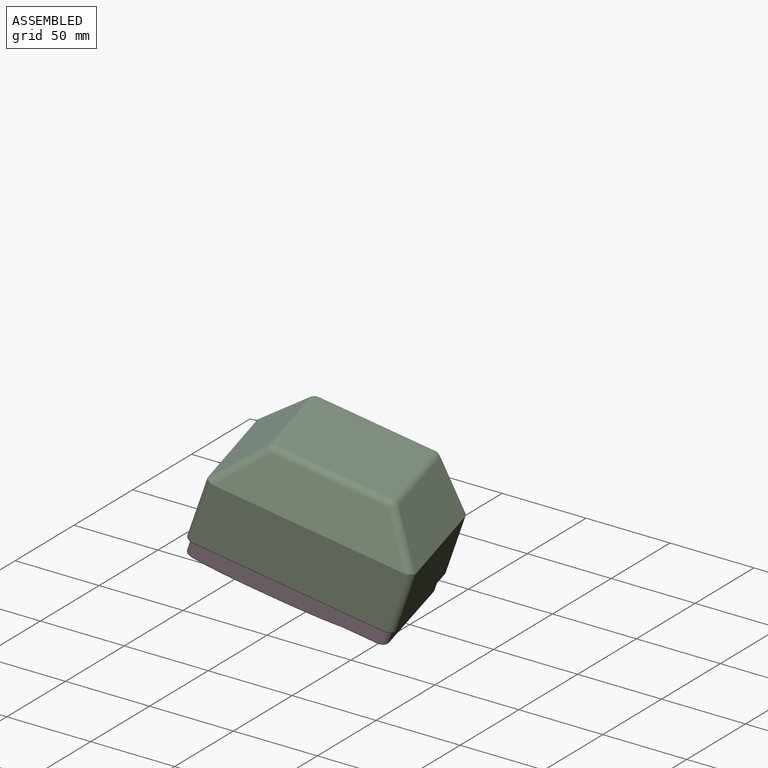
[diagram: assembled view]
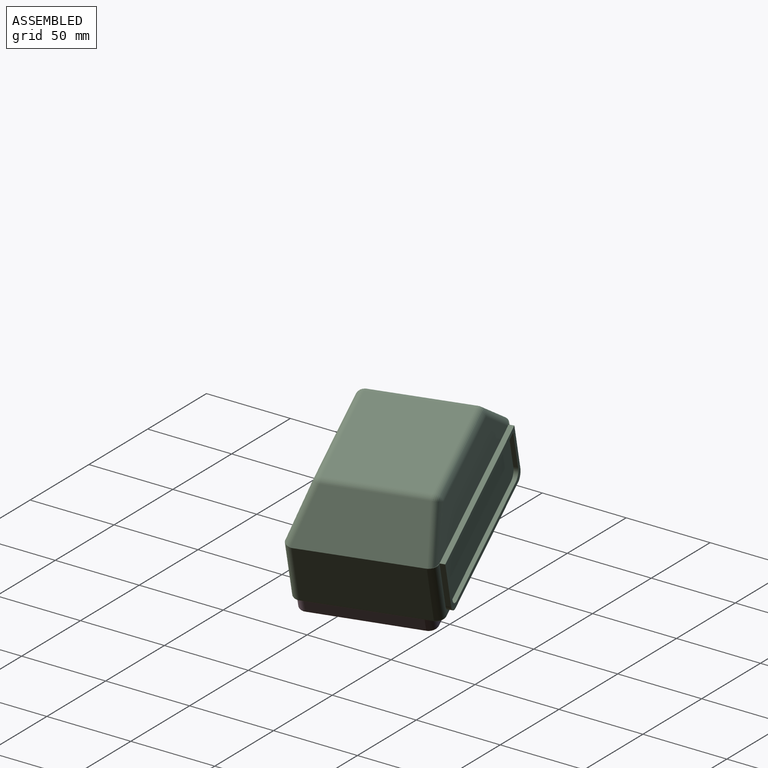
[diagram: assembled view, second angle]
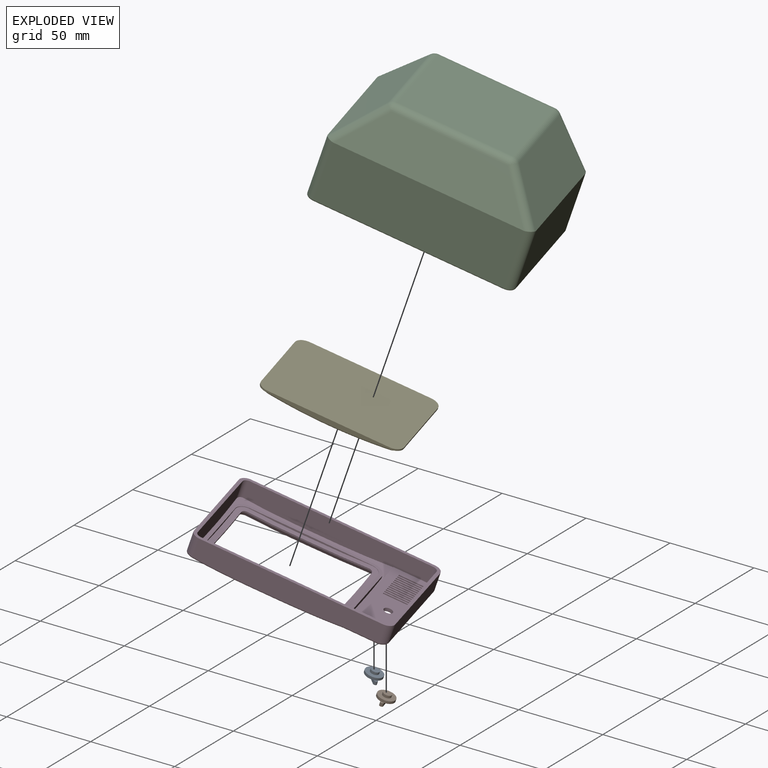
[diagram: exploded view]
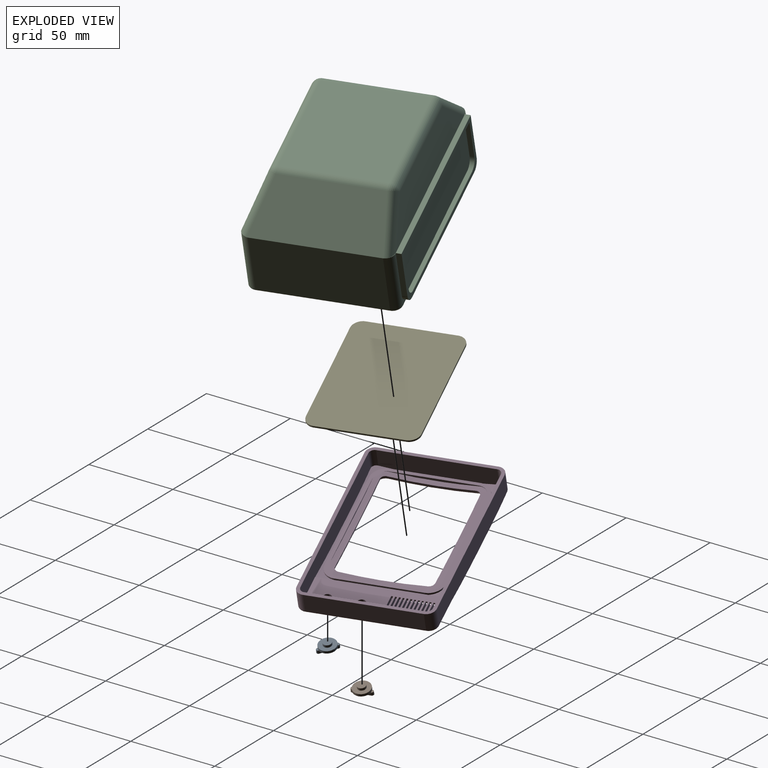
[diagram: exploded view, second angle]
ASSEMBLY  parts=5 mates=5
PART A: 13 faces, bbox 10x5x12.1 mm
  f0: plane 9.78x3.95mm, normal (0,-1,0), area 28.8mm2, adj f3,f9
  f1: cylinder r=2.4mm len=4.8mm, axis (0,-1,0), area 22.6mm2, adj f2,f4
  f2: plane 4.8x4.8mm, normal (0,1,0), area 18.1mm2, adj f1
  f3: cylinder r=5mm len=10mm, axis (0,-1,0), area 47.1mm2, adj f0,f4,f5,f6,f7
  f4: plane 10x10mm, normal (0,1,0), area 60.4mm2, adj f1,f3
  f5: plane 9.78x3.95mm, normal (0,-1,0), area 28.8mm2, adj f3,f11
  f6: plane 2.11x1.17mm, normal (0,1,0), area 1.8mm2, adj f3,f9,f10,f11
  f7: plane 2.11x1.17mm, normal (0,1,0), area 1.8mm2, adj f3,f8,f11
  f8: cylinder r=1.06mm len=2.11mm, axis (0,1,0), area 6.7mm2, adj f7,f9,f11,f12
  f9: plane 9.89x2mm, normal (1,0,0), area 19.8mm2, adj f0,f6,f8,f10,f12
  f10: cylinder r=1.05mm len=2.11mm, axis (0,1,0), area 6.6mm2, adj f6,f9,f11,f12
  f11: plane 10.11x2mm, normal (-1,0,0), area 20.2mm2, adj f5,f6,f7,f8,f10,f12
  f12: plane 12.11x2.11mm, normal (0,-1,0), area 24.6mm2, adj f8,f9,f10,f11
PART B: same geometry as A
PART C: 69 faces, bbox 114.4x62x83.5 mm
  f0: plane 103.5x33mm, normal (0,0,-1), area 657.5mm2, adj f2,f15,f16,f18,f32,f33,f34,f35
  f1: plane 111.5x78mm, normal (0,-1,0), area 587.5mm2, adj f40,f41,f42,f43,f44,f45,f46,f47
  f2: plane 28x3mm, normal (1,0,0), area 84mm2, adj f0,f12,f15,f38
  f3: plane 103.7x23.95mm, normal (0,0.39,0.92), area 2171.9mm2, adj f9,f13,f14,f24,f28,f30
  f4: plane 71.24x25.27mm, normal (-0.76,0.64,0), area 2131.3mm2, adj f10,f11,f14,f21,f27,f30
  f5: plane 101.27x22.5mm, normal (0,0.1,-1), area 1861.3mm2, adj f15,f19,f21,f22
  f6: plane 71.24x25.27mm, normal (0.76,0.64,0), area 2131.3mm2, adj f8,f12,f13,f19,f23,f24
  f7: plane 63.36x58.04mm, normal (0,1,0), area 3677.5mm2, adj f22,f23,f27,f28
  f8: plane 70x34mm, normal (1,0,0), area 2380mm2, adj f6,f12,f13,f45
  f9: plane 103.5x34mm, normal (0,0,1), area 3519mm2, adj f3,f13,f14,f46
  f10: plane 70x34mm, normal (-1,0,0), area 2380mm2, adj f4,f11,f14,f42
  f11: cylinder r=5mm len=34.04mm, axis (0,-1,0), area 267.1mm2, adj f4,f10,f15,f16,f17,f21,f40
  f12: cylinder r=5mm len=34.04mm, axis (0,-1,0), area 267.1mm2, adj f2,f6,f8,f15,f17,f19,f43
  f13: cylinder r=5mm len=34.36mm, axis (0,-1,0), area 268.7mm2, adj f3,f6,f8,f9,f24,f47
  f14: cylinder r=5mm len=34.36mm, axis (0,-1,0), area 268.7mm2, adj f3,f4,f9,f10,f30,f44
  f15: plane 112.36x5.69mm, normal (0,1,0), area 312mm2, adj f0,f2,f5,f11,f12,f16,f19,f21
  f16: plane 28x3mm, normal (-1,0,0), area 84mm2, adj f0,f11,f15,f39
  f17: plane 103.5x6mm, normal (0,0,-1), area 114.2mm2, adj f11,f12,f18,f38,f39,f41
  f18: plane 93.5x3mm, normal (0,-1,0), area 280.5mm2, adj f0,f17,f38,f39
  f19: cylinder r=5mm len=27.95mm, axis (0.64,-0.76,-0.08), area 240.1mm2, adj f5,f6,f12,f15,f20
  f20: sphere r=5mm, area 19.9mm2, adj f19,f22,f23
  f21: cylinder r=5mm len=27.95mm, axis (-0.64,-0.76,-0.08), area 240.1mm2, adj f4,f5,f11,f15,f25
  f22: cylinder r=5mm len=63.36mm, axis (-1,0,0), area 466mm2, adj f5,f7,f20,f25
  f23: cylinder r=5mm len=58.04mm, axis (0,0,1), area 252.7mm2, adj f6,f7,f20,f26
  f24: cylinder r=5mm len=26.62mm, axis (0.61,-0.73,0.31), area 224.4mm2, adj f3,f6,f13,f26
  f25: sphere r=5mm, area 19.9mm2, adj f21,f22,f27
  f26: sphere r=5mm, area 15mm2, adj f23,f24,f28
  f27: cylinder r=5mm len=58.04mm, axis (0,0,1), area 252.7mm2, adj f4,f7,f25,f29
  f28: cylinder r=5mm len=63.36mm, axis (-1,0,0), area 370.9mm2, adj f3,f7,f26,f29
  f29: sphere r=5mm, area 15mm2, adj f27,f28,f30
  f30: cylinder r=5mm len=26.62mm, axis (-0.61,-0.73,0.31), area 224.4mm2, adj f3,f4,f14,f29
  f31: plane 98.5x28mm, normal (0,0,-1), area 2747.3mm2, adj f32,f33,f34,f35,f36,f37
  f32: plane 23x2.5mm, normal (-1,0,0), area 57.5mm2, adj f0,f31,f33,f36
  f33: plane 98.5x2.5mm, normal (0,-1,0), area 246.3mm2, adj f0,f31,f32,f34
  f34: plane 23x2.5mm, normal (1,0,0), area 57.5mm2, adj f0,f31,f33,f37
  f35: plane 88.5x2.5mm, normal (0,1,0), area 221.3mm2, adj f0,f31,f36,f37
  f36: cylinder r=5mm len=5mm, axis (0,0,-1), area 19.6mm2, adj f0,f31,f32,f35
  f37: cylinder r=5mm len=5mm, axis (0,0,1), area 19.6mm2, adj f0,f31,f34,f35
  f38: cylinder r=5mm len=5mm, axis (0,0,1), area 23.6mm2, adj f0,f2,f17,f18
  f39: cylinder r=5mm len=5mm, axis (0,0,-1), area 23.6mm2, adj f0,f16,f17,f18
  f40: torus R=4mm, axis (0,-1,0), area 11.4mm2, adj f1,f11,f41,f42
  f41: cylinder r=1mm len=103.5mm, axis (-1,0,0), area 162.6mm2, adj f1,f17,f40,f43
  f42: cylinder r=1mm len=70mm, axis (0,0,-1), area 110mm2, adj f1,f10,f40,f44
  f43: torus R=4mm, axis (0,-1,0), area 11.4mm2, adj f1,f12,f41,f45
  f44: torus R=4mm, axis (0,-1,0), area 11.4mm2, adj f1,f14,f42,f46
  f45: cylinder r=1mm len=70mm, axis (0,0,-1), area 110mm2, adj f1,f8,f43,f47
  f46: cylinder r=1mm len=103.5mm, axis (1,0,0), area 162.6mm2, adj f1,f9,f44,f47
  f47: torus R=4mm, axis (0,-1,0), area 11.4mm2, adj f1,f13,f45,f46
  f48: cylinder r=5.5mm len=5.5mm, axis (0,-1,0), area 19.6mm2, adj f1,f50,f51,f56,f66,f68
  f49: cylinder r=5.5mm len=5.5mm, axis (0,-1,0), area 19.6mm2, adj f1,f50,f55,f56,f66,f67
  f50: plane 110.5x70.29mm, normal (0,-1,0), area 122mm2, adj f48,f49,f51,f52,f53,f54,f55,f63
  f51: plane 62.5x3mm, normal (-1,0,0), area 187.5mm2, adj f1,f48,f50,f52
  f52: cylinder r=5.5mm len=5.5mm, axis (0,-1,0), area 25.9mm2, adj f1,f50,f51,f53
  f53: plane 99.5x3mm, normal (0,0,-1), area 298.5mm2, adj f1,f50,f52,f54
  f54: cylinder r=5.5mm len=5.5mm, axis (0,-1,0), area 25.9mm2, adj f1,f50,f53,f55
  f55: plane 62.5x3mm, normal (1,0,0), area 187.5mm2, adj f1,f49,f50,f54
  f56: plane 99.5x2mm, normal (0,0,1), area 199mm2, adj f1,f48,f49,f66
  f57: plane 108.44x25.1mm, normal (0,-0.1,1), area 2202.2mm2, adj f58,f59,f60,f61
  f58: plane 66.16x62.74mm, normal (0,-1,0), area 4150.6mm2, adj f57,f60,f61,f62
  f59: plane 109.5x32.9mm, normal (0,0,1), area 3602.2mm2, adj f57,f60,f61,f66,f67,f68
  f60: plane 75.08x25.73mm, normal (0.76,-0.64,0), area 2331.3mm2, adj f57,f58,f59,f62,f64,f67
  f61: plane 75.08x25.73mm, normal (-0.76,-0.64,0), area 2331.3mm2, adj f57,f58,f59,f62,f63,f68
  f62: plane 105.28x25.41mm, normal (0,-0.39,-0.92), area 2406.3mm2, adj f58,f60,f61,f63,f64,f65
  f63: cylinder r=5mm len=33.77mm, axis (0,1,0), area 253mm2, adj f50,f61,f62,f65,f68
  f64: cylinder r=5mm len=33.77mm, axis (0,1,0), area 253mm2, adj f50,f60,f62,f65,f67
  f65: plane 99.5x31.59mm, normal (0,0,-1), area 3143.7mm2, adj f50,f62,f63,f64
  f66: plane 109.5x6.21mm, normal (0,1,0), area 337.5mm2, adj f48,f49,f56,f59,f67,f68
  f67: plane 71x32.27mm, normal (1,0,0), area 2226.4mm2, adj f49,f50,f59,f60,f64,f66
  f68: plane 71x32.27mm, normal (-1,0,0), area 2226.4mm2, adj f48,f50,f59,f61,f63,f66
PART D: 211 faces, bbox 114.4x77.8x20.6 mm
  f0: plane 14.81x1mm, normal (0,0,1), area 14.8mm2, adj f1,f2,f3,f4
  f1: plane 1.5x1mm, normal (-1,0,0), area 1.5mm2, adj f0,f3,f4,f175
  f2: plane 1.5x1mm, normal (1,0,0), area 1.5mm2, adj f0,f3,f4,f175
  f3: plane 14.81x2.5mm, normal (0,-1,0), area 37mm2, adj f0,f1,f2,f34,f35,f55
  f4: plane 14.81x2.5mm, normal (0,1,0), area 37mm2, adj f0,f1,f2,f40,f41,f55
  f5: plane 14.81x1mm, normal (0,0,1), area 14.8mm2, adj f6,f7,f8,f9
  f6: plane 1.5x1mm, normal (-1,0,0), area 1.5mm2, adj f5,f8,f9,f175
  f7: plane 1.5x1mm, normal (1,0,0), area 1.5mm2, adj f5,f8,f9,f175
  f8: plane 14.81x2.5mm, normal (0,-1,0), area 37mm2, adj f5,f6,f7,f36,f37,f55
  f9: plane 14.81x2.5mm, normal (0,1,0), area 37mm2, adj f5,f6,f7,f38,f39,f55
  f10: plane 14.81x1mm, normal (0,0,1), area 14.8mm2, adj f11,f12,f13,f14
  f11: plane 1.5x1mm, normal (1,0,0), area 1.5mm2, adj f10,f13,f14,f175
  f12: plane 1.5x1mm, normal (-1,0,0), area 1.5mm2, adj f10,f13,f14,f175
  f13: plane 14.81x2.5mm, normal (0,1,0), area 37mm2, adj f10,f11,f12,f36,f37,f55
  f14: plane 14.81x2.5mm, normal (0,-1,0), area 37mm2, adj f10,f11,f12,f40,f41,f55
  f15: plane 14.81x1mm, normal (0,0,1), area 14.8mm2, adj f16,f17,f18,f19
  f16: plane 1.5x1mm, normal (-1,0,0), area 1.5mm2, adj f15,f18,f19,f175
  f17: plane 1.5x1mm, normal (1,0,0), area 1.5mm2, adj f15,f18,f19,f175
  f18: plane 14.81x2.5mm, normal (0,-1,0), area 37mm2, adj f15,f16,f17,f32,f33,f55
  f19: plane 14.81x2.5mm, normal (0,1,0), area 37mm2, adj f15,f16,f17,f34,f35,f55
  f20: plane 14.81x1mm, normal (0,0,1), area 14.8mm2, adj f21,f22,f23,f24
  f21: plane 1.5x1mm, normal (1,0,0), area 1.5mm2, adj f20,f23,f24,f175
  f22: plane 1.5x1mm, normal (-1,0,0), area 1.5mm2, adj f20,f23,f24,f175
  f23: plane 14.81x2.5mm, normal (0,1,0), area 37mm2, adj f20,f21,f22,f32,f33,f55
  f24: plane 14.81x2.5mm, normal (0,-1,0), area 37mm2, adj f20,f21,f22,f55,f200,f201
  f25: plane 14.81x1mm, normal (0,0,1), area 14.8mm2, adj f26,f27,f28,f29
  f26: plane 1.5x1mm, normal (-1,0,0), area 1.5mm2, adj f25,f28,f29,f175
  f27: plane 1.5x1mm, normal (1,0,0), area 1.5mm2, adj f25,f28,f29,f175
  f28: plane 14.81x2.5mm, normal (0,-1,0), area 37mm2, adj f25,f26,f27,f38,f39,f55
  f29: plane 14.81x2.5mm, normal (0,1,0), area 37mm2, adj f25,f26,f27,f30,f31,f55
  f30: plane 1x1mm, normal (1,0,0), area 1mm2, adj f29,f55,f175,f194
  f31: plane 1x1mm, normal (-1,0,0), area 1mm2, adj f29,f55,f175,f194
  f32: plane 1x1mm, normal (1,0,0), area 1mm2, adj f18,f23,f55,f175
  f33: plane 1x1mm, normal (-1,0,0), area 1mm2, adj f18,f23,f55,f175
  f34: plane 1x1mm, normal (1,0,0), area 1mm2, adj f3,f19,f55,f175
  f35: plane 1x1mm, normal (-1,0,0), area 1mm2, adj f3,f19,f55,f175
  f36: plane 1x1mm, normal (1,0,0), area 1mm2, adj f8,f13,f55,f175
  f37: plane 1x1mm, normal (-1,0,0), area 1mm2, adj f8,f13,f55,f175
  f38: plane 1x1mm, normal (1,0,0), area 1mm2, adj f9,f28,f55,f175
  f39: plane 1x1mm, normal (-1,0,0), area 1mm2, adj f9,f28,f55,f175
  f40: plane 1x1mm, normal (1,0,0), area 1mm2, adj f4,f14,f55,f175
  f41: plane 1x1mm, normal (-1,0,0), area 1mm2, adj f4,f14,f55,f175
  f42: cylinder r=6mm len=0.12mm, axis (0,0,-1), area 0mm2, adj f59,f72,f108
  f43: plane 1.5x1mm, normal (-1,0,0), area 1.5mm2, adj f175,f181,f182,f183
  f44: plane 1.5x1mm, normal (-1,0,0), area 1.5mm2, adj f175,f190,f191,f192
  f45: plane 1.5x1mm, normal (-1,0,0), area 1.5mm2, adj f175,f187,f188,f189
  f46: plane 1.5x1mm, normal (-1,0,0), area 1.5mm2, adj f175,f193,f194,f195
  f47: plane 39.58x1.5mm, normal (-1,0,0), area 40.1mm2, adj f56,f169,f175,f178,f179,f180
  f48: plane 1.5x1mm, normal (-1,0,0), area 1.5mm2, adj f175,f184,f185,f186
  f49: plane 1.5x0.29mm, normal (1,0,0), area 0.4mm2, adj f172,f175,f176,f177
  f50: plane 1.5x1mm, normal (1,0,0), area 1.5mm2, adj f175,f193,f194,f195
  f51: plane 1.5x1mm, normal (1,0,0), area 1.5mm2, adj f175,f190,f191,f192
  f52: plane 1.5x1mm, normal (1,0,0), area 1.5mm2, adj f175,f181,f182,f183
  f53: plane 1.5x1mm, normal (1,0,0), area 1.5mm2, adj f175,f184,f185,f186
  f54: plane 1.5x1mm, normal (1,0,0), area 1.5mm2, adj f175,f187,f188,f189
  f55: plane 69x21.57mm, normal (0,0,-1), area 1267.6mm2, adj f3,f4,f8,f9,f13,f14,f18,f19
  f56: plane 38.58x14.81mm, normal (0,0,1), area 530.6mm2, adj f47,f169,f170,f171,f178,f202,f209
  f57: plane 110x73mm, normal (0,0,-1), area 702.3mm2, adj f60,f62,f63,f64,f74,f75,f76,f77
  f58: bspline ~89.68x73mm, area 1468mm2, adj f65,f79,f81,f83,f84,f85,f86,f87
  f59: plane 82.03x63.03mm, normal (0,0,-1), area 564.2mm2, adj f42,f66,f67,f68,f69,f70,f71,f72
  f60: plane 63.03x13.08mm, normal (-1,0,0), area 781mm2, adj f57,f76,f77,f85
  f61: plane 49.24x1.7mm, normal (0.97,0,-0.23), area 40.2mm2, adj f65,f210
  f62: plane 100.01x12.09mm, normal (0,1,0), area 1152.4mm2, adj f57,f75,f77,f79,f81
  f63: plane 100.01x12.09mm, normal (0,-1,0), area 1152.4mm2, adj f57,f74,f76,f84,f86
  f64: plane 63x10.6mm, normal (1,0,0), area 667.8mm2, adj f57,f74,f75,f80
  f65: plane 71.88x22.78mm, normal (0,0,1), area 225.6mm2, adj f58,f61,f78,f79,f80,f82,f84,f162
  f66: plane 47.05x1.49mm, normal (-1,0,0), area 49.8mm2, adj f59,f67,f73,f109,f148,f155
  f67: cylinder r=6mm len=6mm, axis (0,0,-1), area 2.2mm2, adj f59,f66,f68,f148
  f68: plane 66.09x1.12mm, normal (0,1,0), area 54.1mm2, adj f59,f67,f69,f134,f141,f148
  f69: cylinder r=6mm len=6mm, axis (0,0,-1), area 2.8mm2, adj f59,f68,f70,f134
  f70: plane 47.05x1.52mm, normal (1,0,0), area 51.1mm2, adj f59,f69,f71,f106,f108,f134
  f71: cylinder r=6mm len=2.32mm, axis (0,0,-1), area 0.2mm2, adj f59,f70,f108
  f72: plane 63.86x0.76mm, normal (0,-1,0), area 30.7mm2, adj f42,f59,f107,f108
  f73: cylinder r=6mm len=1.92mm, axis (0,0,-1), area 0.2mm2, adj f59,f66,f109
  f74: cylinder r=5mm len=10.6mm, axis (0,0,-1), area 83.3mm2, adj f57,f63,f64,f82
  f75: cylinder r=5mm len=10.6mm, axis (0,0,1), area 83.3mm2, adj f57,f62,f64,f78
  f76: cylinder r=5mm len=11.06mm, axis (0,0,1), area 86.4mm2, adj f57,f60,f63,f87
  f77: cylinder r=5mm len=11.06mm, axis (0,0,1), area 86.4mm2, adj f57,f60,f62,f83
  f78: torus R=4mm, axis (0,0,1), area 11.4mm2, adj f65,f75,f79,f80
  f79: cylinder r=1mm len=18.05mm, axis (-1,0,0), area 28.3mm2, adj f58,f62,f65,f78,f81
  f80: cylinder r=1mm len=63mm, axis (0,-1,0), area 99mm2, adj f64,f65,f78,f82
  f81: bspline ~86.92x2.65mm, area 117.3mm2, adj f58,f62,f79,f83
  f82: torus R=4mm, axis (0,0,1), area 11.4mm2, adj f65,f74,f80,f84
  f83: bspline ~6.13x6.13mm, area 10.2mm2, adj f58,f77,f81,f85
  f84: cylinder r=1mm len=18.05mm, axis (1,0,0), area 28.3mm2, adj f58,f63,f65,f82,f86
  f85: bspline ~69.39x3.42mm, area 92mm2, adj f58,f60,f83,f87
  f86: bspline ~86.92x2.65mm, area 117.3mm2, adj f58,f63,f84,f87
  f87: bspline ~6.13x6.13mm, area 10.2mm2, adj f58,f76,f85,f86
  f88: offset ~93.68x77mm, area 731.2mm2, adj f89,f90,f91,f92,f94,f95,f96,f97
  f89: plane 63.05x12.24mm, normal (1,0,0), area 724.7mm2, adj f57,f88,f104,f105
  f90: plane 69.13x2.62mm, normal (-0.97,0,0.23), area 123.6mm2, adj f55,f88,f91,f92
  f91: plane 103.72x14.94mm, normal (0,-1,0), area 1063.1mm2, adj f55,f57,f88,f90,f103,f105
  f92: plane 103.72x14.94mm, normal (0,1,0), area 1063.1mm2, adj f55,f57,f88,f90,f102,f104
  f93: plane 63x9.6mm, normal (-1,0,0), area 604.8mm2, adj f55,f57,f102,f103
  f94: plane 47.46x2.79mm, normal (1,0,0), area 90.8mm2, adj f59,f88,f95,f101
  f95: cylinder r=8mm len=8mm, axis (0,0,-1), area 14.8mm2, adj f59,f88,f94,f96
  f96: plane 69.24x5.06mm, normal (0,-1,0), area 106mm2, adj f59,f88,f95,f97
  f97: cylinder r=8mm len=8mm, axis (0,0,-1), area 15.4mm2, adj f59,f88,f96,f98
  f98: plane 47.04x2.34mm, normal (-1,0,0), area 89.6mm2, adj f59,f88,f97,f99
  f99: cylinder r=8mm len=8mm, axis (0,0,-1), area 11.2mm2, adj f59,f88,f98,f100
  f100: plane 69.25x4.68mm, normal (0,1,0), area 80.7mm2, adj f59,f88,f99,f101
  f101: cylinder r=8mm len=8mm, axis (0,0,-1), area 10.6mm2, adj f59,f88,f94,f100
  f102: cylinder r=3mm len=9.6mm, axis (0,0,-1), area 45.2mm2, adj f55,f57,f92,f93
  f103: cylinder r=3mm len=9.6mm, axis (0,0,1), area 45.2mm2, adj f55,f57,f91,f93
  f104: cylinder r=3mm len=10.16mm, axis (0,0,1), area 47.7mm2, adj f57,f88,f89,f92
  f105: cylinder r=3mm len=10.16mm, axis (0,0,1), area 47.7mm2, adj f57,f88,f89,f91
  f106: bspline ~46.44x3.35mm, area 155.6mm2, adj f70,f108,f128,f134
  f107: bspline ~65.66x4.02mm, area 223.4mm2, adj f59,f72,f108,f109,f116
  f108: bspline ~6.96x6.76mm, area 17.9mm2, adj f42,f59,f70,f71,f72,f106,f107,f122
  f109: bspline ~6.35x6.15mm, area 10mm2, adj f59,f66,f73,f107,f110,f155
  f110: bspline ~3.02x2.76mm, area 4.2mm2, adj f109,f111,f116,f156
  f111: bspline ~3.66x3.5mm, area 3.8mm2, adj f110,f112,f117,f157
  f112: bspline ~5.3x5.01mm, area 21.6mm2, adj f111,f113,f118,f158
  f113: bspline ~6.12x6.07mm, area 10mm2, adj f112,f114,f119,f159
  f114: bspline ~6.7x6.66mm, area 6.3mm2, adj f113,f115,f120,f160
  f115: bspline ~6.74x6.71mm, area 5.9mm2, adj f58,f114,f121,f161
  f116: bspline ~65.77x1.73mm, area 61.1mm2, adj f107,f110,f117,f122
  f117: bspline ~65.77x0.82mm, area 50.3mm2, adj f111,f116,f118,f123
  f118: bspline ~66.1x3.56mm, area 213mm2, adj f112,f117,f119,f124
  f119: bspline ~66.1x1.16mm, area 76.3mm2, adj f113,f118,f120,f125
  f120: bspline ~66.09x1.05mm, area 41.2mm2, adj f114,f119,f121,f126
  f121: bspline ~66.06x4.34mm, area 37.4mm2, adj f58,f115,f120,f127
  f122: bspline ~2.97x2.8mm, area 4.1mm2, adj f108,f116,f123,f128
  f123: bspline ~3.64x3.5mm, area 3.8mm2, adj f117,f122,f124,f129
  f124: bspline ~5.19x5.15mm, area 21.6mm2, adj f118,f123,f125,f130
  f125: bspline ~6.12x6.07mm, area 10mm2, adj f119,f124,f126,f131
  f126: bspline ~6.7x6.66mm, area 6.3mm2, adj f120,f125,f127,f132
  f127: bspline ~6.73x6.72mm, area 6mm2, adj f58,f121,f126,f133
  f128: bspline ~46.62x2.2mm, area 43.3mm2, adj f106,f122,f129,f135
  f129: bspline ~46.62x1.27mm, area 35.7mm2, adj f123,f128,f130,f136
  f130: bspline ~47.14x4.08mm, area 151.6mm2, adj f124,f129,f131,f137
  f131: bspline ~47.14x1.28mm, area 54.5mm2, adj f125,f130,f132,f138
  f132: bspline ~47.14x1.53mm, area 29.4mm2, adj f126,f131,f133,f139
  f133: bspline ~47.09x4.81mm, area 26.8mm2, adj f58,f127,f132,f140
  f134: bspline ~6.97x6.76mm, area 24.7mm2, adj f68,f69,f70,f106,f135,f141
  f135: bspline ~3x2.76mm, area 4.1mm2, adj f128,f134,f136,f142
  f136: bspline ~3.65x3.5mm, area 3.8mm2, adj f129,f135,f137,f143
  f137: bspline ~5.26x5.05mm, area 21.6mm2, adj f130,f136,f138,f144
  f138: bspline ~6.12x6.07mm, area 10mm2, adj f131,f137,f139,f145
  f139: bspline ~6.7x6.66mm, area 6.3mm2, adj f132,f138,f140,f146
  f140: bspline ~6.73x6.72mm, area 6mm2, adj f58,f133,f139,f147
  f141: bspline ~65.65x3.42mm, area 223.7mm2, adj f68,f134,f142,f148
  f142: bspline ~65.76x1.7mm, area 61.1mm2, adj f135,f141,f143,f149
  f143: bspline ~65.76x0.82mm, area 50.3mm2, adj f136,f142,f144,f150
  f144: bspline ~66.09x3.57mm, area 213mm2, adj f137,f143,f145,f151
  f145: bspline ~66.09x1.16mm, area 76.3mm2, adj f138,f144,f146,f152
  f146: bspline ~66.09x1.04mm, area 41.2mm2, adj f139,f145,f147,f153
  f147: bspline ~66.06x1.35mm, area 37.4mm2, adj f58,f140,f146,f154
  f148: bspline ~6.98x6.76mm, area 24.5mm2, adj f66,f67,f68,f141,f149,f155
  f149: bspline ~2.97x2.79mm, area 4.2mm2, adj f142,f148,f150,f156
  f150: bspline ~3.65x3.51mm, area 3.8mm2, adj f143,f149,f151,f157
  f151: bspline ~5.16x5.11mm, area 21.6mm2, adj f144,f150,f152,f158
  f152: bspline ~6.12x6.07mm, area 10mm2, adj f145,f151,f153,f159
  f153: bspline ~6.7x6.66mm, area 6.3mm2, adj f146,f152,f154,f160
  f154: bspline ~6.73x6.71mm, area 5.9mm2, adj f58,f147,f153,f161
  f155: bspline ~46.43x4.03mm, area 153.2mm2, adj f66,f109,f148,f156
  f156: bspline ~46.61x2.16mm, area 43.3mm2, adj f110,f149,f155,f157
  f157: bspline ~46.61x1.23mm, area 35.7mm2, adj f111,f150,f156,f158
  f158: bspline ~47.14x4.09mm, area 151.6mm2, adj f112,f151,f157,f159
  f159: bspline ~47.14x1.26mm, area 54.5mm2, adj f113,f152,f158,f160
  f160: bspline ~47.14x1.5mm, area 29.4mm2, adj f114,f153,f159,f161
  f161: bspline ~47.1x4.77mm, area 26.6mm2, adj f58,f115,f154,f160
  f162: cylinder r=2mm len=2.02mm, axis (0,0,1), area 3.2mm2, adj f65,f163,f174,f175
  f163: plane 63.75x1mm, normal (-1,0,0), area 63.8mm2, adj f65,f162,f164,f175
  f164: cylinder r=2mm len=2mm, axis (0,0,1), area 3.1mm2, adj f65,f163,f165,f175
  f165: plane 15.71x1mm, normal (0,-1,0), area 15.7mm2, adj f65,f164,f166,f175
  f166: plane 67.61x1mm, normal (1,0,0), area 67.6mm2, adj f65,f165,f167,f175
  f167: plane 1.48x1mm, normal (0,1,0), area 1.5mm2, adj f65,f166,f174,f175
  f168: plane 2.29x1.5mm, normal (-1,0,0), area 3.4mm2, adj f173,f175,f176,f177
  f169: plane 12.82x1mm, normal (0.01,1,0), area 12.8mm2, adj f47,f56,f170,f175
  f170: cylinder r=2mm len=2mm, axis (0,0,1), area 3.1mm2, adj f56,f169,f171,f175
  f171: plane 37.51x1.5mm, normal (1,0,0), area 38mm2, adj f56,f170,f175,f178,f179,f180
  f172: cylinder r=2mm len=2mm, axis (0,0,1), area 4.7mm2, adj f49,f173,f175,f177
  f173: plane 12.81x1.5mm, normal (0,-1,0), area 19.2mm2, adj f168,f172,f175,f177
  f174: plane 14.21x1mm, normal (0.01,1,0), area 14.2mm2, adj f65,f162,f167,f175
  f175: plane 67.75x17.71mm, normal (0,0,1), area 238.7mm2, adj f1,f2,f6,f7,f11,f12,f16,f17
  f176: plane 14.81x2.5mm, normal (0,1,0), area 37mm2, adj f49,f55,f168,f177,f207,f208
  f177: plane 14.81x2.29mm, normal (0,0,1), area 33mm2, adj f49,f168,f172,f173,f176
  f178: plane 14.81x0.5mm, normal (0,1,0), area 7.4mm2, adj f47,f56,f171,f180
  f179: plane 14.81x2.5mm, normal (0,-1,0), area 37mm2, adj f47,f55,f171,f180,f198,f199
  f180: plane 14.81x1mm, normal (0,0,1), area 14.8mm2, adj f47,f171,f178,f179
  f181: plane 14.81x2.5mm, normal (0,1,0), area 37mm2, adj f43,f52,f55,f183,f200,f201
  f182: plane 14.81x2.5mm, normal (0,-1,0), area 37mm2, adj f43,f52,f55,f183,f207,f208
  f183: plane 14.81x1mm, normal (0,0,1), area 14.8mm2, adj f43,f52,f181,f182
  f184: plane 14.81x2.5mm, normal (0,1,0), area 37mm2, adj f48,f53,f55,f186,f198,f199
  f185: plane 14.81x2.5mm, normal (0,-1,0), area 37mm2, adj f48,f53,f55,f186,f196,f197
  f186: plane 14.81x1mm, normal (0,0,1), area 14.8mm2, adj f48,f53,f184,f185
  f187: plane 14.81x2.5mm, normal (0,1,0), area 37mm2, adj f45,f54,f55,f189,f196,f197
  f188: plane 14.81x2.5mm, normal (0,-1,0), area 37mm2, adj f45,f54,f55,f189,f203,f204
  f189: plane 14.81x1mm, normal (0,0,1), area 14.8mm2, adj f45,f54,f187,f188
  f190: plane 14.81x2.5mm, normal (0,1,0), area 37mm2, adj f44,f51,f55,f192,f203,f204
  f191: plane 14.81x2.5mm, normal (0,-1,0), area 37mm2, adj f44,f51,f55,f192,f205,f206
  f192: plane 14.81x1mm, normal (0,0,1), area 14.8mm2, adj f44,f51,f190,f191
  f193: plane 14.81x2.5mm, normal (0,1,0), area 37mm2, adj f46,f50,f55,f195,f205,f206
  f194: plane 14.81x2.5mm, normal (0,-1,0), area 37mm2, adj f30,f31,f46,f50,f55,f195
  f195: plane 14.81x1mm, normal (0,0,1), area 14.8mm2, adj f46,f50,f193,f194
  f196: plane 1x1mm, normal (1,0,0), area 1mm2, adj f55,f175,f185,f187
  f197: plane 1x1mm, normal (-1,0,0), area 1mm2, adj f55,f175,f185,f187
  f198: plane 1x1mm, normal (1,0,0), area 1mm2, adj f55,f175,f179,f184
  f199: plane 1x1mm, normal (-1,0,0), area 1mm2, adj f55,f175,f179,f184
  f200: plane 1x1mm, normal (1,0,0), area 1mm2, adj f24,f55,f175,f181
  f201: plane 1x1mm, normal (-1,0,0), area 1mm2, adj f24,f55,f175,f181
  f202: cylinder r=2.5mm len=5mm, axis (0,0,1), area 31.4mm2, adj f55,f56
  f203: plane 1x1mm, normal (1,0,0), area 1mm2, adj f55,f175,f188,f190
  f204: plane 1x1mm, normal (-1,0,0), area 1mm2, adj f55,f175,f188,f190
  f205: plane 1x1mm, normal (1,0,0), area 1mm2, adj f55,f175,f191,f193
  f206: plane 1x1mm, normal (-1,0,0), area 1mm2, adj f55,f175,f191,f193
  f207: plane 1x1mm, normal (1,0,0), area 1mm2, adj f55,f175,f176,f182
  f208: plane 1x1mm, normal (-1,0,0), area 1mm2, adj f55,f175,f176,f182
  f209: cylinder r=2.5mm len=5mm, axis (0,0,1), area 31.4mm2, adj f55,f56
  f210: bspline ~70.09x3.62mm, area 106.8mm2, adj f58,f61,f65
PART E: 27 faces, bbox 88.5x7.4x88.5 mm
  f0: cylinder r=3mm len=3mm, axis (0,1,0), area 6.7mm2, adj f1,f7,f14,f26
  f1: plane 48x2.33mm, normal (-1,0,0), area 95mm2, adj f0,f2,f16,f26
  f2: cylinder r=3mm len=3mm, axis (0,1,0), area 5.2mm2, adj f1,f3,f15,f26
  f3: plane 66x3.12mm, normal (0,0,-1), area 162.4mm2, adj f2,f4,f13,f26
  f4: cylinder r=3mm len=3mm, axis (0,1,0), area 4.9mm2, adj f3,f5,f11,f26
  f5: plane 48x2.26mm, normal (1,0,0), area 91.6mm2, adj f4,f6,f9,f26
  f6: cylinder r=3mm len=3mm, axis (0,1,0), area 6.4mm2, adj f5,f7,f10,f26
  f7: plane 66x3.45mm, normal (0,0,1), area 184.2mm2, adj f0,f6,f12,f26
  f8: sphere r=280mm, area 3677.8mm2, adj f9,f10,f11,f12,f13,f14,f15,f16
  f9: torus R=276.76mm, axis (1,0,0), area 69.6mm2, adj f5,f8,f10,f11
  f10: bspline ~3.68x3.68mm, area 5.9mm2, adj f6,f8,f9,f12
  f11: bspline ~3.68x3.68mm, area 5.9mm2, adj f4,f8,f9,f13
  f12: torus R=277.95mm, axis (0,0,1), area 98.4mm2, adj f7,f8,f10,f14
  f13: torus R=277.61mm, axis (0,0,1), area 97.5mm2, adj f3,f8,f11,f15
  f14: bspline ~3.68x3.68mm, area 5.9mm2, adj f0,f8,f12,f16
  f15: bspline ~3.68x3.18mm, area 5.9mm2, adj f2,f8,f13,f16
  f16: torus R=276.83mm, axis (1,0,0), area 69.6mm2, adj f1,f8,f14,f15
  f17: plane 48x1mm, normal (1,0,0), area 48mm2, adj f18,f24,f25,f26
  f18: cylinder r=6mm len=6mm, axis (0,-1,0), area 9.4mm2, adj f17,f19,f25,f26
  f19: plane 66x1mm, normal (0,0,1), area 66mm2, adj f18,f20,f25,f26
  f20: cylinder r=6mm len=6mm, axis (0,-1,0), area 9.4mm2, adj f19,f21,f25,f26
  f21: plane 48x1mm, normal (-1,0,0), area 48mm2, adj f20,f22,f25,f26
  f22: cylinder r=6mm len=6mm, axis (0,-1,0), area 9.4mm2, adj f21,f23,f25,f26
  f23: plane 66x1mm, normal (0,0,-1), area 66mm2, adj f22,f24,f25,f26
  f24: cylinder r=6mm len=6mm, axis (0,-1,0), area 9.4mm2, adj f17,f23,f25,f26
  f25: plane 78x60mm, normal (0,1,0), area 4649.1mm2, adj f17,f18,f19,f20,f21,f22,f23,f24
  f26: plane 78x60mm, normal (0,-1,0), area 768.8mm2, adj f0,f1,f2,f3,f4,f5,f6,f7
PLACE A rot(axis=(0.2,-0.67,-0.71),132.7deg) t=(300.26,-252.44,59.46)mm
PLACE B rot(axis=(0.96,0.28,-0.03),89.9deg) t=(295.54,-235.33,58.72)mm
PLACE C rot(axis=(0.96,0.28,-0.02),90deg) t=(241.94,-234.39,123.38)mm
PLACE D rot(axis=(0.98,0.13,-0.15),177.6deg) t=(203.47,-244.06,99.34)mm
PLACE E rot(axis=(0.96,0.28,-0.02),90deg) t=(239.58,-247.25,80.02)mm
MATE revolute A.f1 <-> D.f209  axis (0.29,0.08,0.95) through (300.7,-252.32,60.89)mm
MATE revolute B.f1 <-> D.f202  axis (-0.29,-0.08,-0.95) through (296.2,-235.15,60.86)mm
MATE cylindrical A.f1 <-> D.f209  axis (-0.29,-0.08,-0.95) through (300.92,-252.27,61.6)mm
MATE planar C.f50 <-> D.f57  axis (-0.29,-0.08,-0.95) through (261.44,-255.63,85.5)mm
MATE planar E.f26 <-> D.f59  axis (-0.29,-0.08,-0.95) through (245.2,-243.92,79.06)mm
